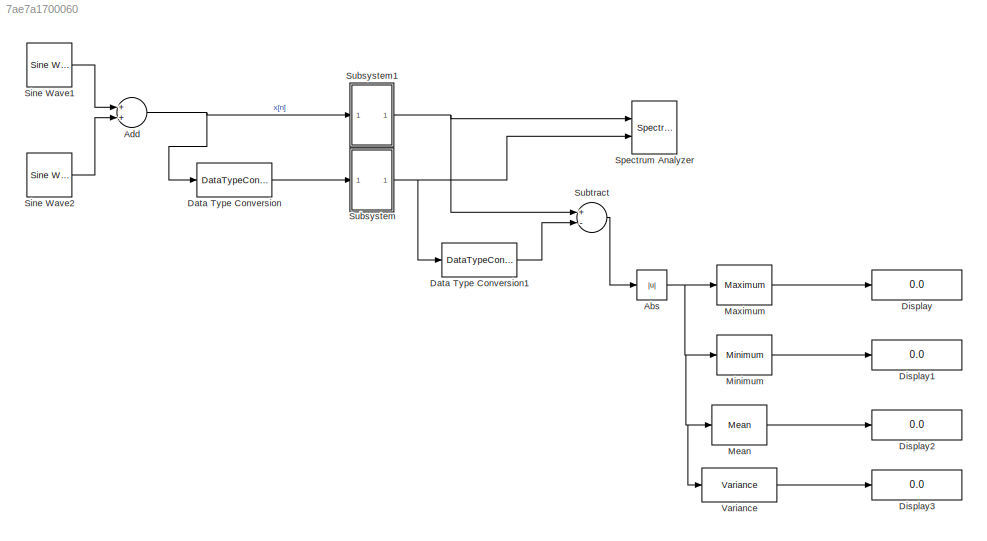
MODEL slx_7ae7a1700060
KIND model
CONFIG AbsTol = auto
CONFIG EnableMultiTasking = off
CONFIG FixedStep = auto
CONFIG MaxStep = auto
CONFIG MinStep = auto
CONFIG RelTol = 1e-3
CONFIG SampleTimeConstraint = Unconstrained
CONFIG Solver = VariableStepAuto
CONFIG SolverName = VariableStepAuto
CONFIG StartTime = 0.0
CONFIG StopTime = 10.0
BLOCK [Abs] Abs
  SaturateOnIntegerOverflow = off
BLOCK [Sum] Add
  InputSameDT = off
  OutDataTypeStr = Inherit: Inherit via internal rule
  Ports = [2, 1]
  SaturateOnIntegerOverflow = off
BLOCK [DataTypeConversion] Data Type Conversion
  OutDataTypeStr = fixdt(1,16,8, 'DataTypeOverride', 'Off')
  RndMeth = Floor
  SaturateOnIntegerOverflow = off
BLOCK [DataTypeConversion] Data Type Conversion1
  OutDataTypeStr = double
  RndMeth = Floor
  SaturateOnIntegerOverflow = off
BLOCK [Display] Display
  Decimation = 1
  Ports = [1]
BLOCK [Display] Display1
  Decimation = 1
  Ports = [1]
BLOCK [Display] Display2
  Decimation = 1
  Ports = [1]
BLOCK [Display] Display3
  Decimation = 1
  Ports = [1]
BLOCK [Reference] Maximum  REF=dspstat3/Maximum
  Ports = [1, 1]
  SourceBlock = dspstat3/Maximum
  SourceType = Maximum
  UserDataPersistent = on
BLOCK [Reference] Mean  REF=dspstat3/Mean
  Ports = [1, 1]
  SourceBlock = dspstat3/Mean
  SourceType = Mean
  UserDataPersistent = on
BLOCK [Reference] Minimum  REF=dspstat3/Minimum
  Ports = [1, 1]
  SourceBlock = dspstat3/Minimum
  SourceType = Minimum
  UserDataPersistent = on
BLOCK [Reference] Sine Wave1  REF=dspsrcs4/Sine Wave
  Ports = [0, 1]
  SourceBlock = dspsrcs4/Sine Wave
  SourceType = Sine Wave
BLOCK [Reference] Sine Wave2  REF=dspsrcs4/Sine Wave
  Ports = [0, 1]
  SourceBlock = dspsrcs4/Sine Wave
  SourceType = Sine Wave
BLOCK [SpectrumAnalyzer] Spectrum Analyzer
  NumInputPorts = 2
  Ports = [2]
  ScopeSpecificationString = spbscopes.SpectrumAnalyzerBlockCfg('CurrentConfiguration', extmgr.ConfigurationSet(extmgr.Configuration('Core','General UI',true),extmgr.Configuration('Core','Source UI',true),extmgr.Configuration('Sources','WiredSimulink',true),extmgr.Configuration('Visuals','Spectrum',true,'AxesProperties',struct('Color',[0 0 0],'XColor',[0.686274509803922 0.686274509803922 0.686274509803922],'YColor',[0.6862745...<+1345ch>
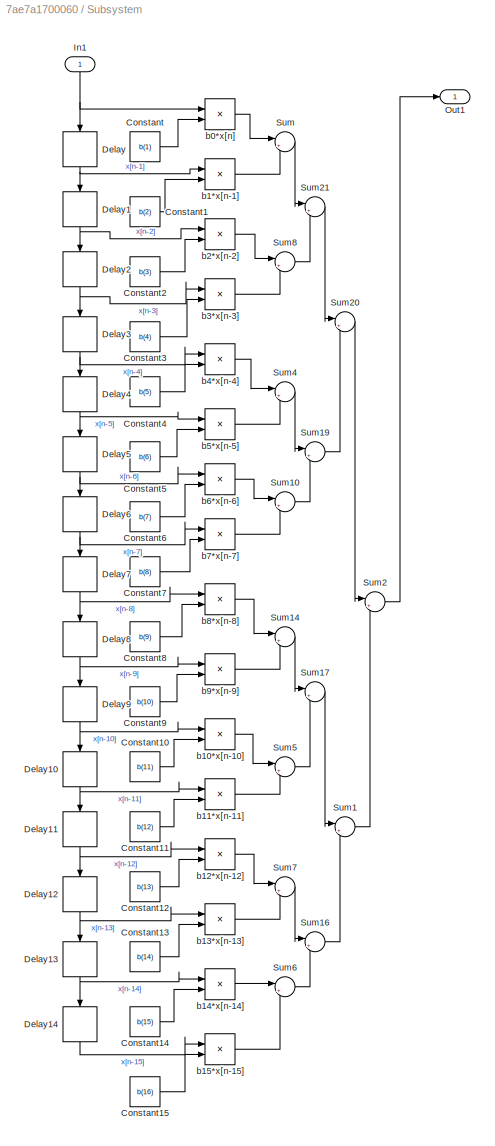
BLOCK [SubSystem] Subsystem
  MinMaxOverflowLogging = MinMaxAndOverflow
  Ports = [1, 1]
  RequestExecContextInheritance = off
  Variant = off
BLOCK [Constant] Subsystem/Constant
  OutDataTypeStr = fixdt(1,16,23)
  Value = b(1)
BLOCK [Constant] Subsystem/Constant1
  OutDataTypeStr = fixdt(0,16,23)
  Value = b(2)
BLOCK [Constant] Subsystem/Constant10
  OutDataTypeStr = fixdt(1,16,18)
  Value = b(11)
BLOCK [Constant] Subsystem/Constant11
  OutDataTypeStr = fixdt(1,16,19)
  Value = b(12)
BLOCK [Constant] Subsystem/Constant12
  OutDataTypeStr = fixdt(0,16,21)
  Value = b(13)
BLOCK [Constant] Subsystem/Constant13
  OutDataTypeStr = fixdt(0,16,20)
  Value = b(14)
BLOCK [Constant] Subsystem/Constant14
  OutDataTypeStr = fixdt(0,16,23)
  Value = b(15)
BLOCK [Constant] Subsystem/Constant15
  OutDataTypeStr = fixdt(1,16,23)
  Value = b(16)
BLOCK [Constant] Subsystem/Constant2
  OutDataTypeStr = fixdt(0,16,20)
  Value = b(3)
BLOCK [Constant] Subsystem/Constant3
  OutDataTypeStr = fixdt(0,16,21)
  Value = b(4)
BLOCK [Constant] Subsystem/Constant4
  OutDataTypeStr = fixdt(1,16,19)
  Value = b(5)
BLOCK [Constant] Subsystem/Constant5
  OutDataTypeStr = fixdt(1,16,18)
  Value = b(6)
BLOCK [Constant] Subsystem/Constant6
  OutDataTypeStr = fixdt(0,16,18)
  Value = b(7)
BLOCK [Constant] Subsystem/Constant7
  OutDataTypeStr = fixdt(0,16,17)
  Value = b(8)
BLOCK [Constant] Subsystem/Constant8
  OutDataTypeStr = fixdt(0,16,17)
  Value = b(9)
BLOCK [Constant] Subsystem/Constant9
  OutDataTypeStr = fixdt(0,16,18)
  Value = b(10)
BLOCK [Delay] Subsystem/Delay
  DelayLength = 1
  InitialCondition = 0
  InputPortMap = u0
  Ports = [1, 1]
BLOCK [Delay] Subsystem/Delay1
  DelayLength = 1
  InitialCondition = 0
  InputPortMap = u0
  Ports = [1, 1]
BLOCK [Delay] Subsystem/Delay10
  DelayLength = 1
  InitialCondition = 0
  InputPortMap = u0
  Ports = [1, 1]
BLOCK [Delay] Subsystem/Delay11
  DelayLength = 1
  InitialCondition = 0
  InputPortMap = u0
  Ports = [1, 1]
BLOCK [Delay] Subsystem/Delay12
  DelayLength = 1
  InitialCondition = 0
  InputPortMap = u0
  Ports = [1, 1]
BLOCK [Delay] Subsystem/Delay13
  DelayLength = 1
  InitialCondition = 0
  InputPortMap = u0
  Ports = [1, 1]
BLOCK [Delay] Subsystem/Delay14
  DelayLength = 1
  InitialCondition = 0
  InputPortMap = u0
  Ports = [1, 1]
BLOCK [Delay] Subsystem/Delay2
  DelayLength = 1
  InitialCondition = 0
  InputPortMap = u0
  Ports = [1, 1]
BLOCK [Delay] Subsystem/Delay3
  DelayLength = 1
  InitialCondition = 0
  InputPortMap = u0
  Ports = [1, 1]
BLOCK [Delay] Subsystem/Delay4
  DelayLength = 1
  InitialCondition = 0
  InputPortMap = u0
  Ports = [1, 1]
BLOCK [Delay] Subsystem/Delay5
  DelayLength = 1
  InitialCondition = 0
  InputPortMap = u0
  Ports = [1, 1]
BLOCK [Delay] Subsystem/Delay6
  DelayLength = 1
  InitialCondition = 0
  InputPortMap = u0
  Ports = [1, 1]
BLOCK [Delay] Subsystem/Delay7
  DelayLength = 1
  InitialCondition = 0
  InputPortMap = u0
  Ports = [1, 1]
BLOCK [Delay] Subsystem/Delay8
  DelayLength = 1
  InitialCondition = 0
  InputPortMap = u0
  Ports = [1, 1]
BLOCK [Delay] Subsystem/Delay9
  DelayLength = 1
  InitialCondition = 0
  InputPortMap = u0
  Ports = [1, 1]
BLOCK [Inport] Subsystem/In1
  IconDisplay = Port number
  OutDataTypeStr = fixdt(1,16,8)
  OutMax = 94
  OutMin = -94
BLOCK [Outport] Subsystem/Out1
  IconDisplay = Port number
BLOCK [Sum] Subsystem/Sum
  IconShape = round
  InputSameDT = off
  Inputs = |++
  OutDataTypeStr = fixdt(1,16,15)
  Ports = [2, 1]
  SaturateOnIntegerOverflow = off
BLOCK [Sum] Subsystem/Sum1
  IconShape = round
  InputSameDT = off
  Inputs = |++
  OutDataTypeStr = fixdt(1,16,9)
  Ports = [2, 1]
  SaturateOnIntegerOverflow = off
BLOCK [Sum] Subsystem/Sum10
  IconShape = round
  InputSameDT = off
  Inputs = |++
  OutDataTypeStr = fixdt(1,16,9)
  Ports = [2, 1]
  SaturateOnIntegerOverflow = off
BLOCK [Sum] Subsystem/Sum14
  IconShape = round
  InputSameDT = off
  Inputs = |++
  OutDataTypeStr = fixdt(1,16,9)
  Ports = [2, 1]
  SaturateOnIntegerOverflow = off
BLOCK [Sum] Subsystem/Sum16
  IconShape = round
  InputSameDT = off
  Inputs = |++
  OutDataTypeStr = fixdt(1,16,13)
  Ports = [2, 1]
  SaturateOnIntegerOverflow = off
BLOCK [Sum] Subsystem/Sum17
  IconShape = round
  InputSameDT = off
  Inputs = |++
  OutDataTypeStr = fixdt(1,16,9)
  Ports = [2, 1]
  SaturateOnIntegerOverflow = off
BLOCK [Sum] Subsystem/Sum19
  IconShape = round
  InputSameDT = off
  Inputs = |++
  OutDataTypeStr = fixdt(1,16,9)
  Ports = [2, 1]
  SaturateOnIntegerOverflow = off
BLOCK [Sum] Subsystem/Sum2
  IconShape = round
  InputSameDT = off
  Inputs = |++
  OutDataTypeStr = fixdt(1,16,10)
  Ports = [2, 1]
  SaturateOnIntegerOverflow = off
BLOCK [Sum] Subsystem/Sum20
  IconShape = round
  InputSameDT = off
  Inputs = |++
  OutDataTypeStr = fixdt(1,16,9)
  Ports = [2, 1]
  SaturateOnIntegerOverflow = off
BLOCK [Sum] Subsystem/Sum21
  IconShape = round
  InputSameDT = off
  Inputs = |++
  OutDataTypeStr = fixdt(1,16,13)
  Ports = [2, 1]
  SaturateOnIntegerOverflow = off
BLOCK [Sum] Subsystem/Sum4
  IconShape = round
  InputSameDT = off
  Inputs = |++
  OutDataTypeStr = fixdt(1,16,12)
  Ports = [2, 1]
  SaturateOnIntegerOverflow = off
BLOCK [Sum] Subsystem/Sum5
  IconShape = round
  InputSameDT = off
  Inputs = |++
  OutDataTypeStr = fixdt(1,16,12)
  Ports = [2, 1]
  SaturateOnIntegerOverflow = off
BLOCK [Sum] Subsystem/Sum6
  IconShape = round
  InputSameDT = off
  Inputs = |++
  OutDataTypeStr = fixdt(1,16,15)
  Ports = [2, 1]
  SaturateOnIntegerOverflow = off
BLOCK [Sum] Subsystem/Sum7
  IconShape = round
  InputSameDT = off
  Inputs = |++
  OutDataTypeStr = fixdt(1,16,13)
  Ports = [2, 1]
  SaturateOnIntegerOverflow = off
BLOCK [Sum] Subsystem/Sum8
  IconShape = round
  InputSameDT = off
  Inputs = |++
  OutDataTypeStr = fixdt(1,16,13)
  Ports = [2, 1]
  SaturateOnIntegerOverflow = off
BLOCK [Product] Subsystem/b0*x[n]
  InputSameDT = off
  OutDataTypeStr = fixdt(1,16,16)
  Ports = [2, 1]
  RndMeth = Floor
  SaturateOnIntegerOverflow = off
BLOCK [Product] Subsystem/b1*x[n-1]
  InputSameDT = off
  OutDataTypeStr = fixdt(1,16,15)
  Ports = [2, 1]
  RndMeth = Floor
  SaturateOnIntegerOverflow = off
BLOCK [Product] Subsystem/b10*x[n-10]
  InputSameDT = off
  OutDataTypeStr = fixdt(1,16,12)
  Ports = [2, 1]
  RndMeth = Floor
  SaturateOnIntegerOverflow = off
BLOCK [Product] Subsystem/b11*x[n-11]
  InputSameDT = off
  OutDataTypeStr = fixdt(1,16,12)
  Ports = [2, 1]
  RndMeth = Floor
  SaturateOnIntegerOverflow = off
BLOCK [Product] Subsystem/b12*x[n-12]
  InputSameDT = off
  OutDataTypeStr = fixdt(1,16,13)
  Ports = [2, 1]
  RndMeth = Floor
  SaturateOnIntegerOverflow = off
BLOCK [Product] Subsystem/b13*x[n-13]
  InputSameDT = off
  OutDataTypeStr = fixdt(1,16,13)
  Ports = [2, 1]
  RndMeth = Floor
  SaturateOnIntegerOverflow = off
BLOCK [Product] Subsystem/b14*x[n-14]
  InputSameDT = off
  OutDataTypeStr = fixdt(1,16,15)
  Ports = [2, 1]
  RndMeth = Floor
  SaturateOnIntegerOverflow = off
BLOCK [Product] Subsystem/b15*x[n-15]
  InputSameDT = off
  OutDataTypeStr = fixdt(1,16,16)
  Ports = [2, 1]
  RndMeth = Floor
  SaturateOnIntegerOverflow = off
BLOCK [Product] Subsystem/b2*x[n-2]
  InputSameDT = off
  OutDataTypeStr = fixdt(1,16,13)
  Ports = [2, 1]
  RndMeth = Floor
  SaturateOnIntegerOverflow = off
BLOCK [Product] Subsystem/b3*x[n-3]
  InputSameDT = off
  OutDataTypeStr = fixdt(1,16,13)
  Ports = [2, 1]
  RndMeth = Floor
  SaturateOnIntegerOverflow = off
BLOCK [Product] Subsystem/b4*x[n-4]
  InputSameDT = off
  OutDataTypeStr = fixdt(1,16,12)
  Ports = [2, 1]
  RndMeth = Floor
  SaturateOnIntegerOverflow = off
BLOCK [Product] Subsystem/b5*x[n-5]
  InputSameDT = off
  OutDataTypeStr = fixdt(1,16,12)
  Ports = [2, 1]
  RndMeth = Floor
  SaturateOnIntegerOverflow = off
BLOCK [Product] Subsystem/b6*x[n-6]
  InputSameDT = off
  OutDataTypeStr = fixdt(1,16,11)
  Ports = [2, 1]
  RndMeth = Floor
  SaturateOnIntegerOverflow = off
BLOCK [Product] Subsystem/b7*x[n-7]
  InputSameDT = off
  OutDataTypeStr = fixdt(1,16,9)
  Ports = [2, 1]
  RndMeth = Floor
  SaturateOnIntegerOverflow = off
BLOCK [Product] Subsystem/b8*x[n-8]
  InputSameDT = off
  OutDataTypeStr = fixdt(1,16,9)
  Ports = [2, 1]
  RndMeth = Floor
  SaturateOnIntegerOverflow = off
BLOCK [Product] Subsystem/b9*x[n-9]
  InputSameDT = off
  OutDataTypeStr = fixdt(1,16,11)
  Ports = [2, 1]
  RndMeth = Floor
  SaturateOnIntegerOverflow = off
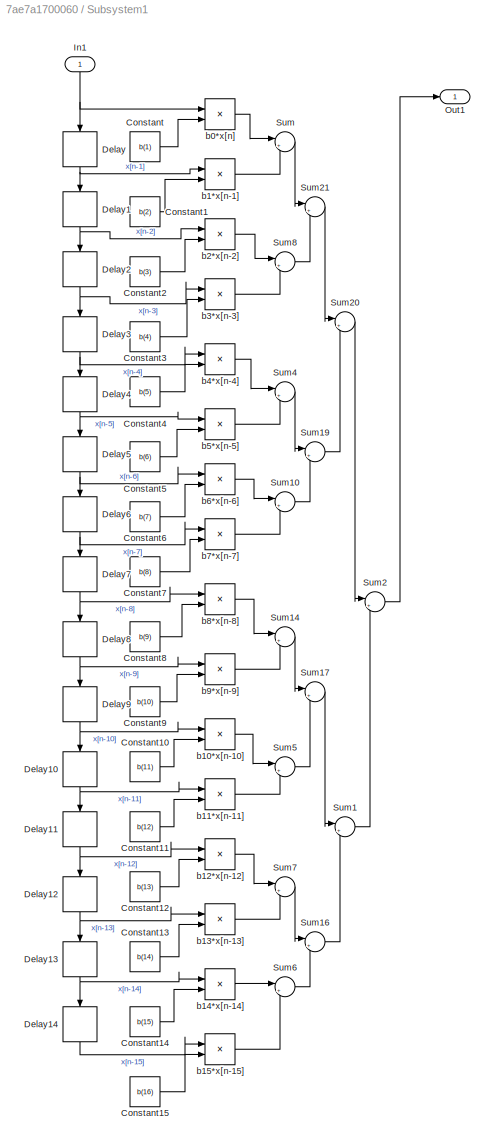
BLOCK [SubSystem] Subsystem1
  Ports = [1, 1]
  RequestExecContextInheritance = off
  Variant = off
BLOCK [Constant] Subsystem1/Constant
  Value = b(1)
BLOCK [Constant] Subsystem1/Constant1
  Value = b(2)
BLOCK [Constant] Subsystem1/Constant10
  Value = b(11)
BLOCK [Constant] Subsystem1/Constant11
  Value = b(12)
BLOCK [Constant] Subsystem1/Constant12
  Value = b(13)
BLOCK [Constant] Subsystem1/Constant13
  Value = b(14)
BLOCK [Constant] Subsystem1/Constant14
  Value = b(15)
BLOCK [Constant] Subsystem1/Constant15
  Value = b(16)
BLOCK [Constant] Subsystem1/Constant2
  Value = b(3)
BLOCK [Constant] Subsystem1/Constant3
  Value = b(4)
BLOCK [Constant] Subsystem1/Constant4
  Value = b(5)
BLOCK [Constant] Subsystem1/Constant5
  Value = b(6)
BLOCK [Constant] Subsystem1/Constant6
  Value = b(7)
BLOCK [Constant] Subsystem1/Constant7
  Value = b(8)
BLOCK [Constant] Subsystem1/Constant8
  Value = b(9)
BLOCK [Constant] Subsystem1/Constant9
  Value = b(10)
BLOCK [Delay] Subsystem1/Delay
  DelayLength = 1
  InitialCondition = 0
  InputPortMap = u0
  Ports = [1, 1]
BLOCK [Delay] Subsystem1/Delay1
  DelayLength = 1
  InitialCondition = 0
  InputPortMap = u0
  Ports = [1, 1]
BLOCK [Delay] Subsystem1/Delay10
  DelayLength = 1
  InitialCondition = 0
  InputPortMap = u0
  Ports = [1, 1]
BLOCK [Delay] Subsystem1/Delay11
  DelayLength = 1
  InitialCondition = 0
  InputPortMap = u0
  Ports = [1, 1]
BLOCK [Delay] Subsystem1/Delay12
  DelayLength = 1
  InitialCondition = 0
  InputPortMap = u0
  Ports = [1, 1]
BLOCK [Delay] Subsystem1/Delay13
  DelayLength = 1
  InitialCondition = 0
  InputPortMap = u0
  Ports = [1, 1]
BLOCK [Delay] Subsystem1/Delay14
  DelayLength = 1
  InitialCondition = 0
  InputPortMap = u0
  Ports = [1, 1]
BLOCK [Delay] Subsystem1/Delay2
  DelayLength = 1
  InitialCondition = 0
  InputPortMap = u0
  Ports = [1, 1]
BLOCK [Delay] Subsystem1/Delay3
  DelayLength = 1
  InitialCondition = 0
  InputPortMap = u0
  Ports = [1, 1]
BLOCK [Delay] Subsystem1/Delay4
  DelayLength = 1
  InitialCondition = 0
  InputPortMap = u0
  Ports = [1, 1]
BLOCK [Delay] Subsystem1/Delay5
  DelayLength = 1
  InitialCondition = 0
  InputPortMap = u0
  Ports = [1, 1]
BLOCK [Delay] Subsystem1/Delay6
  DelayLength = 1
  InitialCondition = 0
  InputPortMap = u0
  Ports = [1, 1]
BLOCK [Delay] Subsystem1/Delay7
  DelayLength = 1
  InitialCondition = 0
  InputPortMap = u0
  Ports = [1, 1]
BLOCK [Delay] Subsystem1/Delay8
  DelayLength = 1
  InitialCondition = 0
  InputPortMap = u0
  Ports = [1, 1]
BLOCK [Delay] Subsystem1/Delay9
  DelayLength = 1
  InitialCondition = 0
  InputPortMap = u0
  Ports = [1, 1]
BLOCK [Inport] Subsystem1/In1
  IconDisplay = Port number
BLOCK [Outport] Subsystem1/Out1
  IconDisplay = Port number
BLOCK [Sum] Subsystem1/Sum
  IconShape = round
  InputSameDT = off
  Inputs = |++
  OutDataTypeStr = Inherit: Inherit via internal rule
  Ports = [2, 1]
  SaturateOnIntegerOverflow = off
BLOCK [Sum] Subsystem1/Sum1
  IconShape = round
  InputSameDT = off
  Inputs = |++
  OutDataTypeStr = Inherit: Inherit via internal rule
  Ports = [2, 1]
  SaturateOnIntegerOverflow = off
BLOCK [Sum] Subsystem1/Sum10
  IconShape = round
  InputSameDT = off
  Inputs = |++
  OutDataTypeStr = Inherit: Inherit via internal rule
  Ports = [2, 1]
  SaturateOnIntegerOverflow = off
BLOCK [Sum] Subsystem1/Sum14
  IconShape = round
  InputSameDT = off
  Inputs = |++
  OutDataTypeStr = Inherit: Inherit via internal rule
  Ports = [2, 1]
  SaturateOnIntegerOverflow = off
BLOCK [Sum] Subsystem1/Sum16
  IconShape = round
  InputSameDT = off
  Inputs = |++
  OutDataTypeStr = Inherit: Inherit via internal rule
  Ports = [2, 1]
  SaturateOnIntegerOverflow = off
BLOCK [Sum] Subsystem1/Sum17
  IconShape = round
  InputSameDT = off
  Inputs = |++
  OutDataTypeStr = Inherit: Inherit via internal rule
  Ports = [2, 1]
  SaturateOnIntegerOverflow = off
BLOCK [Sum] Subsystem1/Sum19
  IconShape = round
  InputSameDT = off
  Inputs = |++
  OutDataTypeStr = Inherit: Inherit via internal rule
  Ports = [2, 1]
  SaturateOnIntegerOverflow = off
BLOCK [Sum] Subsystem1/Sum2
  IconShape = round
  InputSameDT = off
  Inputs = |++
  OutDataTypeStr = Inherit: Inherit via internal rule
  Ports = [2, 1]
  SaturateOnIntegerOverflow = off
BLOCK [Sum] Subsystem1/Sum20
  IconShape = round
  InputSameDT = off
  Inputs = |++
  OutDataTypeStr = Inherit: Inherit via internal rule
  Ports = [2, 1]
  SaturateOnIntegerOverflow = off
BLOCK [Sum] Subsystem1/Sum21
  IconShape = round
  InputSameDT = off
  Inputs = |++
  OutDataTypeStr = Inherit: Inherit via internal rule
  Ports = [2, 1]
  SaturateOnIntegerOverflow = off
BLOCK [Sum] Subsystem1/Sum4
  IconShape = round
  InputSameDT = off
  Inputs = |++
  OutDataTypeStr = Inherit: Inherit via internal rule
  Ports = [2, 1]
  SaturateOnIntegerOverflow = off
BLOCK [Sum] Subsystem1/Sum5
  IconShape = round
  InputSameDT = off
  Inputs = |++
  OutDataTypeStr = Inherit: Inherit via internal rule
  Ports = [2, 1]
  SaturateOnIntegerOverflow = off
BLOCK [Sum] Subsystem1/Sum6
  IconShape = round
  InputSameDT = off
  Inputs = |++
  OutDataTypeStr = Inherit: Inherit via internal rule
  Ports = [2, 1]
  SaturateOnIntegerOverflow = off
BLOCK [Sum] Subsystem1/Sum7
  IconShape = round
  InputSameDT = off
  Inputs = |++
  OutDataTypeStr = Inherit: Inherit via internal rule
  Ports = [2, 1]
  SaturateOnIntegerOverflow = off
BLOCK [Sum] Subsystem1/Sum8
  IconShape = round
  InputSameDT = off
  Inputs = |++
  OutDataTypeStr = Inherit: Inherit via internal rule
  Ports = [2, 1]
  SaturateOnIntegerOverflow = off
BLOCK [Product] Subsystem1/b0*x[n]
  InputSameDT = off
  OutDataTypeStr = Inherit: Inherit via internal rule
  Ports = [2, 1]
  RndMeth = Floor
  SaturateOnIntegerOverflow = off
BLOCK [Product] Subsystem1/b1*x[n-1]
  InputSameDT = off
  OutDataTypeStr = Inherit: Inherit via internal rule
  Ports = [2, 1]
  RndMeth = Floor
  SaturateOnIntegerOverflow = off
BLOCK [Product] Subsystem1/b10*x[n-10]
  InputSameDT = off
  OutDataTypeStr = Inherit: Inherit via internal rule
  Ports = [2, 1]
  RndMeth = Floor
  SaturateOnIntegerOverflow = off
BLOCK [Product] Subsystem1/b11*x[n-11]
  InputSameDT = off
  OutDataTypeStr = Inherit: Inherit via internal rule
  Ports = [2, 1]
  RndMeth = Floor
  SaturateOnIntegerOverflow = off
BLOCK [Product] Subsystem1/b12*x[n-12]
  InputSameDT = off
  OutDataTypeStr = Inherit: Inherit via internal rule
  Ports = [2, 1]
  RndMeth = Floor
  SaturateOnIntegerOverflow = off
BLOCK [Product] Subsystem1/b13*x[n-13]
  InputSameDT = off
  OutDataTypeStr = Inherit: Inherit via internal rule
  Ports = [2, 1]
  RndMeth = Floor
  SaturateOnIntegerOverflow = off
BLOCK [Product] Subsystem1/b14*x[n-14]
  InputSameDT = off
  OutDataTypeStr = Inherit: Inherit via internal rule
  Ports = [2, 1]
  RndMeth = Floor
  SaturateOnIntegerOverflow = off
BLOCK [Product] Subsystem1/b15*x[n-15]
  InputSameDT = off
  OutDataTypeStr = Inherit: Inherit via internal rule
  Ports = [2, 1]
  RndMeth = Floor
  SaturateOnIntegerOverflow = off
BLOCK [Product] Subsystem1/b2*x[n-2]
  InputSameDT = off
  OutDataTypeStr = Inherit: Inherit via internal rule
  Ports = [2, 1]
  RndMeth = Floor
  SaturateOnIntegerOverflow = off
BLOCK [Product] Subsystem1/b3*x[n-3]
  InputSameDT = off
  OutDataTypeStr = Inherit: Inherit via internal rule
  Ports = [2, 1]
  RndMeth = Floor
  SaturateOnIntegerOverflow = off
BLOCK [Product] Subsystem1/b4*x[n-4]
  InputSameDT = off
  OutDataTypeStr = Inherit: Inherit via internal rule
  Ports = [2, 1]
  RndMeth = Floor
  SaturateOnIntegerOverflow = off
BLOCK [Product] Subsystem1/b5*x[n-5]
  InputSameDT = off
  OutDataTypeStr = Inherit: Inherit via internal rule
  Ports = [2, 1]
  RndMeth = Floor
  SaturateOnIntegerOverflow = off
BLOCK [Product] Subsystem1/b6*x[n-6]
  InputSameDT = off
  OutDataTypeStr = Inherit: Inherit via internal rule
  Ports = [2, 1]
  RndMeth = Floor
  SaturateOnIntegerOverflow = off
BLOCK [Product] Subsystem1/b7*x[n-7]
  InputSameDT = off
  OutDataTypeStr = Inherit: Inherit via internal rule
  Ports = [2, 1]
  RndMeth = Floor
  SaturateOnIntegerOverflow = off
BLOCK [Product] Subsystem1/b8*x[n-8]
  InputSameDT = off
  OutDataTypeStr = Inherit: Inherit via internal rule
  Ports = [2, 1]
  RndMeth = Floor
  SaturateOnIntegerOverflow = off
BLOCK [Product] Subsystem1/b9*x[n-9]
  InputSameDT = off
  OutDataTypeStr = Inherit: Inherit via internal rule
  Ports = [2, 1]
  RndMeth = Floor
  SaturateOnIntegerOverflow = off
BLOCK [Sum] Subtract
  InputSameDT = off
  Inputs = +-
  OutDataTypeStr = Inherit: Inherit via internal rule
  Ports = [2, 1]
  SaturateOnIntegerOverflow = off
BLOCK [Reference] Variance  REF=dspstat3/Variance
  Ports = [1, 1]
  SourceBlock = dspstat3/Variance
  SourceType = Variance
  UserDataPersistent = on
NET Abs:1 -> Maximum:1, Mean:1, Minimum:1, Variance:1
NET Add:1 -> Data Type Conversion:1, Subsystem1:1
LINE Data Type Conversion1:1 -> Subtract:2
LINE Data Type Conversion:1 -> Subsystem:1
LINE Maximum:1 -> Display:1
LINE Mean:1 -> Display2:1
LINE Minimum:1 -> Display1:1
LINE Sine Wave1:1 -> Add:1
LINE Sine Wave2:1 -> Add:2
LINE Subsystem/Constant10:1 -> Subsystem/b10*x[n-10]:2
LINE Subsystem/Constant11:1 -> Subsystem/b11*x[n-11]:2
LINE Subsystem/Constant12:1 -> Subsystem/b12*x[n-12]:2
LINE Subsystem/Constant13:1 -> Subsystem/b13*x[n-13]:2
LINE Subsystem/Constant14:1 -> Subsystem/b14*x[n-14]:2
LINE Subsystem/Constant15:1 -> Subsystem/b15*x[n-15]:2
LINE Subsystem/Constant1:1 -> Subsystem/b1*x[n-1]:2
LINE Subsystem/Constant2:1 -> Subsystem/b2*x[n-2]:2
LINE Subsystem/Constant3:1 -> Subsystem/b3*x[n-3]:2
LINE Subsystem/Constant4:1 -> Subsystem/b4*x[n-4]:2
LINE Subsystem/Constant5:1 -> Subsystem/b5*x[n-5]:2
LINE Subsystem/Constant6:1 -> Subsystem/b6*x[n-6]:2
LINE Subsystem/Constant7:1 -> Subsystem/b7*x[n-7]:2
LINE Subsystem/Constant8:1 -> Subsystem/b8*x[n-8]:2
LINE Subsystem/Constant9:1 -> Subsystem/b9*x[n-9]:2
LINE Subsystem/Constant:1 -> Subsystem/b0*x[n]:2
NET Subsystem/Delay10:1 -> Subsystem/Delay11:1, Subsystem/b11*x[n-11]:1
NET Subsystem/Delay11:1 -> Subsystem/Delay12:1, Subsystem/b12*x[n-12]:1
NET Subsystem/Delay12:1 -> Subsystem/Delay13:1, Subsystem/b13*x[n-13]:1
NET Subsystem/Delay13:1 -> Subsystem/Delay14:1, Subsystem/b14*x[n-14]:1
LINE Subsystem/Delay14:1 -> Subsystem/b15*x[n-15]:1
NET Subsystem/Delay1:1 -> Subsystem/Delay2:1, Subsystem/b2*x[n-2]:1
NET Subsystem/Delay2:1 -> Subsystem/Delay3:1, Subsystem/b3*x[n-3]:1
NET Subsystem/Delay3:1 -> Subsystem/Delay4:1, Subsystem/b4*x[n-4]:1
NET Subsystem/Delay4:1 -> Subsystem/Delay5:1, Subsystem/b5*x[n-5]:1
NET Subsystem/Delay5:1 -> Subsystem/Delay6:1, Subsystem/b6*x[n-6]:1
NET Subsystem/Delay6:1 -> Subsystem/Delay7:1, Subsystem/b7*x[n-7]:1
NET Subsystem/Delay7:1 -> Subsystem/Delay8:1, Subsystem/b8*x[n-8]:1
NET Subsystem/Delay8:1 -> Subsystem/Delay9:1, Subsystem/b9*x[n-9]:1
NET Subsystem/Delay9:1 -> Subsystem/Delay10:1, Subsystem/b10*x[n-10]:1
NET Subsystem/Delay:1 -> Subsystem/Delay1:1, Subsystem/b1*x[n-1]:1
NET Subsystem/In1:1 -> Subsystem/Delay:1, Subsystem/b0*x[n]:1
LINE Subsystem/Sum10:1 -> Subsystem/Sum19:2
LINE Subsystem/Sum14:1 -> Subsystem/Sum17:1
LINE Subsystem/Sum16:1 -> Subsystem/Sum1:2
LINE Subsystem/Sum17:1 -> Subsystem/Sum1:1
LINE Subsystem/Sum19:1 -> Subsystem/Sum20:2
LINE Subsystem/Sum1:1 -> Subsystem/Sum2:2
LINE Subsystem/Sum20:1 -> Subsystem/Sum2:1
LINE Subsystem/Sum21:1 -> Subsystem/Sum20:1
LINE Subsystem/Sum2:1 -> Subsystem/Out1:1
LINE Subsystem/Sum4:1 -> Subsystem/Sum19:1
LINE Subsystem/Sum5:1 -> Subsystem/Sum17:2
LINE Subsystem/Sum6:1 -> Subsystem/Sum16:2
LINE Subsystem/Sum7:1 -> Subsystem/Sum16:1
LINE Subsystem/Sum8:1 -> Subsystem/Sum21:2
LINE Subsystem/Sum:1 -> Subsystem/Sum21:1
LINE Subsystem/b0*x[n]:1 -> Subsystem/Sum:1
LINE Subsystem/b1*x[n-1]:1 -> Subsystem/Sum:2
LINE Subsystem/b10*x[n-10]:1 -> Subsystem/Sum5:1
LINE Subsystem/b11*x[n-11]:1 -> Subsystem/Sum5:2
LINE Subsystem/b12*x[n-12]:1 -> Subsystem/Sum7:1
LINE Subsystem/b13*x[n-13]:1 -> Subsystem/Sum7:2
LINE Subsystem/b14*x[n-14]:1 -> Subsystem/Sum6:1
LINE Subsystem/b15*x[n-15]:1 -> Subsystem/Sum6:2
LINE Subsystem/b2*x[n-2]:1 -> Subsystem/Sum8:1
LINE Subsystem/b3*x[n-3]:1 -> Subsystem/Sum8:2
LINE Subsystem/b4*x[n-4]:1 -> Subsystem/Sum4:1
LINE Subsystem/b5*x[n-5]:1 -> Subsystem/Sum4:2
LINE Subsystem/b6*x[n-6]:1 -> Subsystem/Sum10:1
LINE Subsystem/b7*x[n-7]:1 -> Subsystem/Sum10:2
LINE Subsystem/b8*x[n-8]:1 -> Subsystem/Sum14:1
LINE Subsystem/b9*x[n-9]:1 -> Subsystem/Sum14:2
LINE Subsystem1/Constant10:1 -> Subsystem1/b10*x[n-10]:2
LINE Subsystem1/Constant11:1 -> Subsystem1/b11*x[n-11]:2
LINE Subsystem1/Constant12:1 -> Subsystem1/b12*x[n-12]:2
LINE Subsystem1/Constant13:1 -> Subsystem1/b13*x[n-13]:2
LINE Subsystem1/Constant14:1 -> Subsystem1/b14*x[n-14]:2
LINE Subsystem1/Constant15:1 -> Subsystem1/b15*x[n-15]:2
LINE Subsystem1/Constant1:1 -> Subsystem1/b1*x[n-1]:2
LINE Subsystem1/Constant2:1 -> Subsystem1/b2*x[n-2]:2
LINE Subsystem1/Constant3:1 -> Subsystem1/b3*x[n-3]:2
LINE Subsystem1/Constant4:1 -> Subsystem1/b4*x[n-4]:2
LINE Subsystem1/Constant5:1 -> Subsystem1/b5*x[n-5]:2
LINE Subsystem1/Constant6:1 -> Subsystem1/b6*x[n-6]:2
LINE Subsystem1/Constant7:1 -> Subsystem1/b7*x[n-7]:2
LINE Subsystem1/Constant8:1 -> Subsystem1/b8*x[n-8]:2
LINE Subsystem1/Constant9:1 -> Subsystem1/b9*x[n-9]:2
LINE Subsystem1/Constant:1 -> Subsystem1/b0*x[n]:2
NET Subsystem1/Delay10:1 -> Subsystem1/Delay11:1, Subsystem1/b11*x[n-11]:1
NET Subsystem1/Delay11:1 -> Subsystem1/Delay12:1, Subsystem1/b12*x[n-12]:1
NET Subsystem1/Delay12:1 -> Subsystem1/Delay13:1, Subsystem1/b13*x[n-13]:1
NET Subsystem1/Delay13:1 -> Subsystem1/Delay14:1, Subsystem1/b14*x[n-14]:1
LINE Subsystem1/Delay14:1 -> Subsystem1/b15*x[n-15]:1
NET Subsystem1/Delay1:1 -> Subsystem1/Delay2:1, Subsystem1/b2*x[n-2]:1
NET Subsystem1/Delay2:1 -> Subsystem1/Delay3:1, Subsystem1/b3*x[n-3]:1
NET Subsystem1/Delay3:1 -> Subsystem1/Delay4:1, Subsystem1/b4*x[n-4]:1
NET Subsystem1/Delay4:1 -> Subsystem1/Delay5:1, Subsystem1/b5*x[n-5]:1
NET Subsystem1/Delay5:1 -> Subsystem1/Delay6:1, Subsystem1/b6*x[n-6]:1
NET Subsystem1/Delay6:1 -> Subsystem1/Delay7:1, Subsystem1/b7*x[n-7]:1
NET Subsystem1/Delay7:1 -> Subsystem1/Delay8:1, Subsystem1/b8*x[n-8]:1
NET Subsystem1/Delay8:1 -> Subsystem1/Delay9:1, Subsystem1/b9*x[n-9]:1
NET Subsystem1/Delay9:1 -> Subsystem1/Delay10:1, Subsystem1/b10*x[n-10]:1
NET Subsystem1/Delay:1 -> Subsystem1/Delay1:1, Subsystem1/b1*x[n-1]:1
NET Subsystem1/In1:1 -> Subsystem1/Delay:1, Subsystem1/b0*x[n]:1
LINE Subsystem1/Sum10:1 -> Subsystem1/Sum19:2
LINE Subsystem1/Sum14:1 -> Subsystem1/Sum17:1
LINE Subsystem1/Sum16:1 -> Subsystem1/Sum1:2
LINE Subsystem1/Sum17:1 -> Subsystem1/Sum1:1
LINE Subsystem1/Sum19:1 -> Subsystem1/Sum20:2
LINE Subsystem1/Sum1:1 -> Subsystem1/Sum2:2
LINE Subsystem1/Sum20:1 -> Subsystem1/Sum2:1
LINE Subsystem1/Sum21:1 -> Subsystem1/Sum20:1
LINE Subsystem1/Sum2:1 -> Subsystem1/Out1:1
LINE Subsystem1/Sum4:1 -> Subsystem1/Sum19:1
LINE Subsystem1/Sum5:1 -> Subsystem1/Sum17:2
LINE Subsystem1/Sum6:1 -> Subsystem1/Sum16:2
LINE Subsystem1/Sum7:1 -> Subsystem1/Sum16:1
LINE Subsystem1/Sum8:1 -> Subsystem1/Sum21:2
LINE Subsystem1/Sum:1 -> Subsystem1/Sum21:1
LINE Subsystem1/b0*x[n]:1 -> Subsystem1/Sum:1
LINE Subsystem1/b1*x[n-1]:1 -> Subsystem1/Sum:2
LINE Subsystem1/b10*x[n-10]:1 -> Subsystem1/Sum5:1
LINE Subsystem1/b11*x[n-11]:1 -> Subsystem1/Sum5:2
LINE Subsystem1/b12*x[n-12]:1 -> Subsystem1/Sum7:1
LINE Subsystem1/b13*x[n-13]:1 -> Subsystem1/Sum7:2
LINE Subsystem1/b14*x[n-14]:1 -> Subsystem1/Sum6:1
LINE Subsystem1/b15*x[n-15]:1 -> Subsystem1/Sum6:2
LINE Subsystem1/b2*x[n-2]:1 -> Subsystem1/Sum8:1
LINE Subsystem1/b3*x[n-3]:1 -> Subsystem1/Sum8:2
LINE Subsystem1/b4*x[n-4]:1 -> Subsystem1/Sum4:1
LINE Subsystem1/b5*x[n-5]:1 -> Subsystem1/Sum4:2
LINE Subsystem1/b6*x[n-6]:1 -> Subsystem1/Sum10:1
LINE Subsystem1/b7*x[n-7]:1 -> Subsystem1/Sum10:2
LINE Subsystem1/b8*x[n-8]:1 -> Subsystem1/Sum14:1
LINE Subsystem1/b9*x[n-9]:1 -> Subsystem1/Sum14:2
NET Subsystem1:1 -> Spectrum Analyzer:1, Subtract:1
NET Subsystem:1 -> Data Type Conversion1:1, Spectrum Analyzer:2
LINE Subtract:1 -> Abs:1
LINE Variance:1 -> Display3:1
note: NET lines group one-source signal fan-out (src -> all destinations, sorted); 1:1 wires keep LINE
